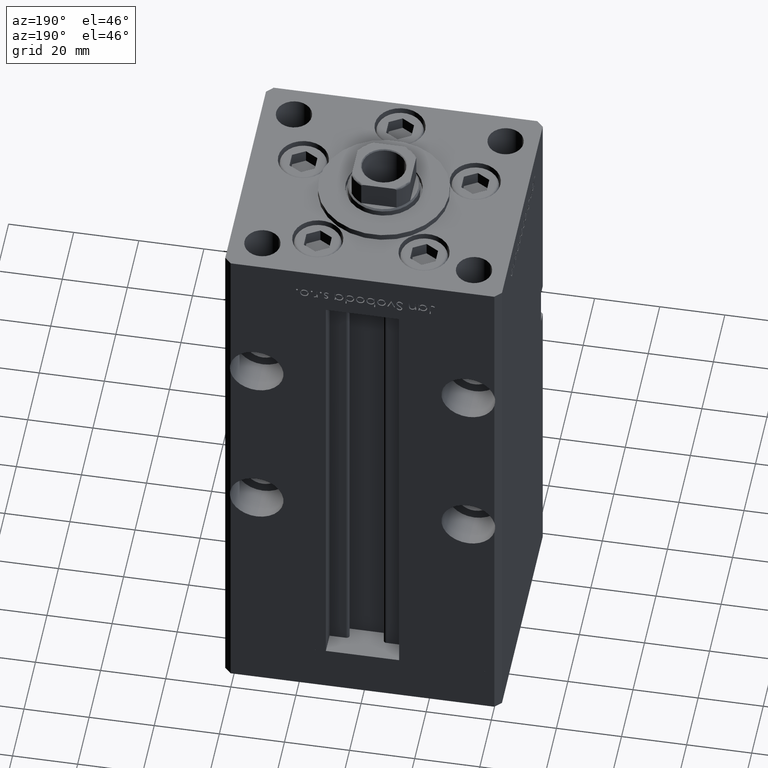
[diagram: clean part render]
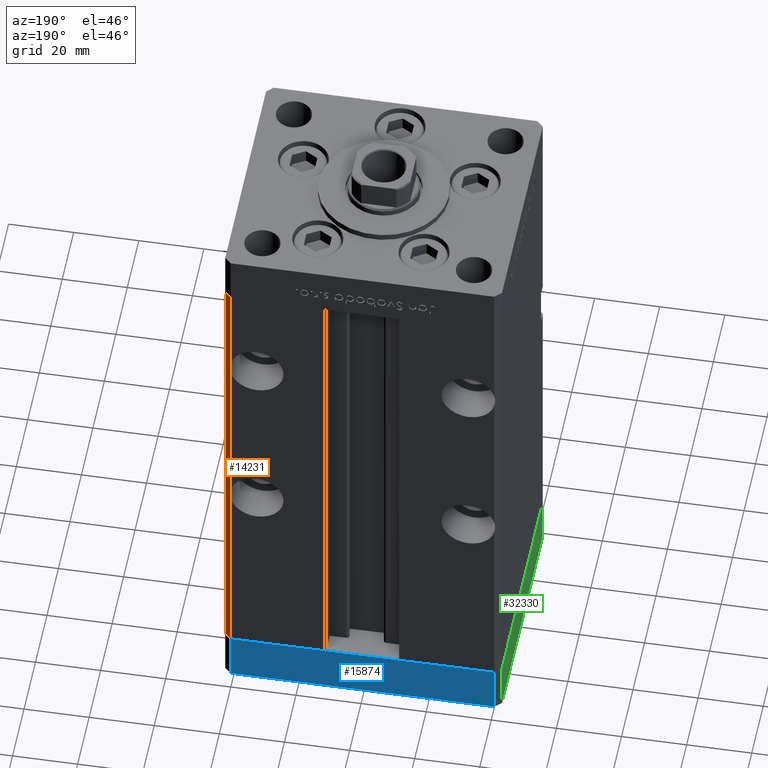
[diagram: same view with three faces highlighted in distinct colors, each labeled with its STEP entity id]
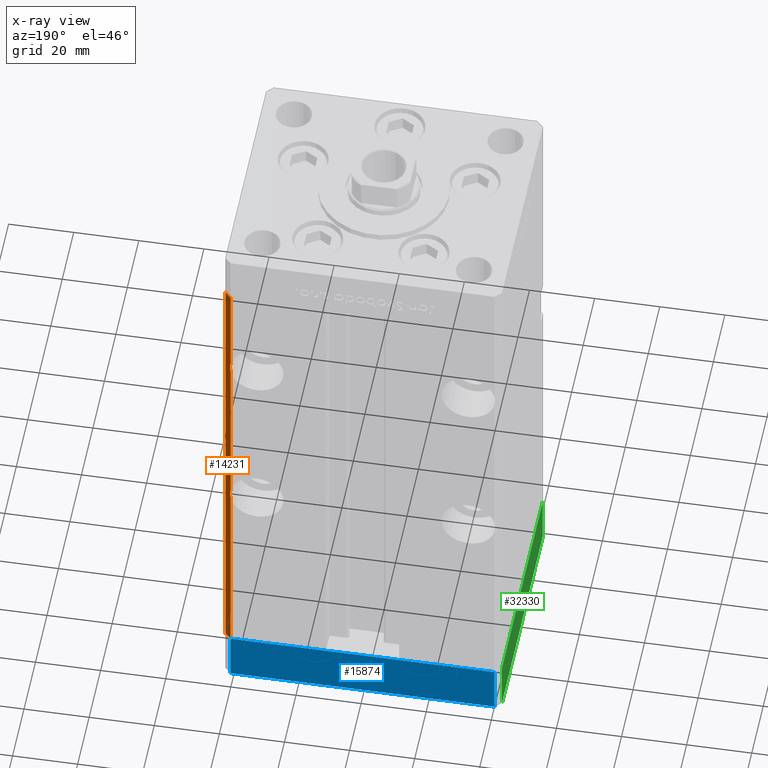
[diagram: x-ray of the same camera — body ghosted, the three highlighted faces saturated]
A machine part, auxiliary view with three faces highlighted in distinct colors.
The next image is the same camera in x-ray (body ghosted, the three faces saturated) — at least one of them is partly hidden behind the body in this view.
Their STEP definitions:

[orange] entity #14231 — the highlighted planar face has unit normal (0.7071, 0.7071, 0).
#256 = EDGE_CURVE ( 'NONE', #6663, #2018, #42035, .T. ) ;
#643 = ORIENTED_EDGE ( 'NONE', *, *, #37658, .F. ) ;
#1051 = EDGE_CURVE ( 'NONE', #2018, #48564, #11385, .T. ) ;
#1235 = ORIENTED_EDGE ( 'NONE', *, *, #25604, .T. ) ;
#2018 = VERTEX_POINT ( 'NONE', #45298 ) ;
#2128 = ORIENTED_EDGE ( 'NONE', *, *, #256, .F. ) ;
#2135 = CARTESIAN_POINT ( 'NONE',  ( 40.50000000000000711, 37.50000000000000000, 60.98443556292540535 ) ) ;
#2619 = LINE ( 'NONE', #18510, #19942 ) ;
#3597 = CARTESIAN_POINT ( 'NONE',  ( 40.50000000000000711, 37.50000000000000000, 0.000000000000000000 ) ) ;
#5402 = EDGE_CURVE ( 'NONE', #35009, #44326, #12497, .T. ) ;
#5543 = LINE ( 'NONE', #35129, #17250 ) ;
#6375 = LINE ( 'NONE', #14187, #12860 ) ;
#6413 = CARTESIAN_POINT ( 'NONE',  ( 40.50000000000000711, 37.50000000000000000, 120.0155644370746586 ) ) ;
#6663 = VERTEX_POINT ( 'NONE', #38478 ) ;
#7000 = LINE ( 'NONE', #49167, #32285 ) ;
#7986 = VECTOR ( 'NONE', #52550, 1000.000000000000000 ) ;
#10210 = CARTESIAN_POINT ( 'NONE',  ( 40.50000000000000711, 37.50000000000000000, 65.01556443707460176 ) ) ;
#11385 = LINE ( 'NONE', #27805, #7986 ) ;
#12497 =( BOUNDED_CURVE ( )  B_SPLINE_CURVE ( 3, ( #17370, #21922, #14379, #30015 ),
 .UNSPECIFIED., .F., .F. ) 
 B_SPLINE_CURVE_WITH_KNOTS ( ( 4, 4 ),
 ( 2.894783720120217119, 3.388401587059369113 ),
 .UNSPECIFIED. ) 
 CURVE ( )  GEOMETRIC_REPRESENTATION_ITEM ( )  RATIONAL_B_SPLINE_CURVE ( ( 1.000000000000000000, 0.9797979797979792238, 0.9797979797979792238, 1.000000000000000000 ) ) 
 REPRESENTATION_ITEM ( '' )  );
#12860 = VECTOR ( 'NONE', #19543, 1000.000000000000114 ) ;
#14187 = CARTESIAN_POINT ( 'NONE',  ( 40.50000000000000711, 37.50000000000000000, 148.5000000000000000 ) ) ;
#14231 = ADVANCED_FACE ( 'NONE', ( #49140 ), #16608, .T. ) ;
#14379 = CARTESIAN_POINT ( 'NONE',  ( 40.83505154639176737, 37.16494845360823973, 117.3142925110983015 ) ) ;
#14503 = ORIENTED_EDGE ( 'NONE', *, *, #32746, .F. ) ;
#14675 = DIRECTION ( 'NONE',  ( -0.000000000000000000, -0.000000000000000000, -1.000000000000000000 ) ) ;
#14899 = CARTESIAN_POINT ( 'NONE',  ( 40.50000000000000711, 37.50000000000000000, 0.000000000000000000 ) ) ;
#16608 = PLANE ( 'NONE',  #51229 ) ;
#17250 = VECTOR ( 'NONE', #14675, 1000.000000000000000 ) ;
#17370 = CARTESIAN_POINT ( 'NONE',  ( 40.50000000000000711, 37.50000000000000000, 120.0155644370746586 ) ) ;
#18510 = CARTESIAN_POINT ( 'NONE',  ( 40.50000000000000711, 37.50000000000000000, 148.5000000000000000 ) ) ;
#19543 = DIRECTION ( 'NONE',  ( 0.7071067811865500152, -0.7071067811865451302, 0.000000000000000000 ) ) ;
#19942 = VECTOR ( 'NONE', #27902, 1000.000000000000000 ) ;
#20396 = DIRECTION ( 'NONE',  ( -0.000000000000000000, -0.000000000000000000, -1.000000000000000000 ) ) ;
#21922 = CARTESIAN_POINT ( 'NONE',  ( 40.83505154639176737, 37.16494845360823973, 118.6857074889016843 ) ) ;
#23624 = CARTESIAN_POINT ( 'NONE',  ( 40.50000000000000711, 37.50000000000000000, 115.9844355629253272 ) ) ;
#25604 = EDGE_CURVE ( 'NONE', #39463, #35318, #6375, .T. ) ;
#26619 = CARTESIAN_POINT ( 'NONE',  ( 40.83505154639174606, 37.16494845360826105, 63.68570748890166300 ) ) ;
#26777 = ORIENTED_EDGE ( 'NONE', *, *, #51770, .T. ) ;
#27805 = CARTESIAN_POINT ( 'NONE',  ( 40.50000000000000711, 37.50000000000000000, 148.5000000000000000 ) ) ;
#27902 = DIRECTION ( 'NONE',  ( -0.000000000000000000, -0.000000000000000000, -1.000000000000000000 ) ) ;
#28671 = VECTOR ( 'NONE', #44235, 1000.000000000000114 ) ;
#28825 = VERTEX_POINT ( 'NONE', #51706 ) ;
#30015 = CARTESIAN_POINT ( 'NONE',  ( 40.50000000000000711, 37.50000000000000000, 115.9844355629253272 ) ) ;
#32285 = VECTOR ( 'NONE', #20396, 1000.000000000000000 ) ;
#32746 = EDGE_CURVE ( 'NONE', #44326, #6663, #5543, .T. ) ;
#35009 = VERTEX_POINT ( 'NONE', #6413 ) ;
#35113 = ORIENTED_EDGE ( 'NONE', *, *, #45203, .F. ) ;
#35129 = CARTESIAN_POINT ( 'NONE',  ( 40.50000000000000711, 37.50000000000000000, 148.5000000000000000 ) ) ;
#35318 = VERTEX_POINT ( 'NONE', #40407 ) ;
#36223 = DIRECTION ( 'NONE',  ( -0.7071067811865500152, 0.7071067811865451302, 0.000000000000000000 ) ) ;
#37658 = EDGE_CURVE ( 'NONE', #39463, #35009, #2619, .T. ) ;
#38092 = EDGE_LOOP ( 'NONE', ( #2128, #14503, #51098, #643, #1235, #26777, #35113, #50991 ) ) ;
#38478 = CARTESIAN_POINT ( 'NONE',  ( 40.50000000000000711, 37.50000000000000000, 65.01556443707460176 ) ) ;
#39463 = VERTEX_POINT ( 'NONE', #42478 ) ;
#40407 = CARTESIAN_POINT ( 'NONE',  ( 42.50000000000001421, 35.50000000000000711, 148.5000000000000000 ) ) ;
#40448 = LINE ( 'NONE', #3597, #28671 ) ;
#42035 =( BOUNDED_CURVE ( )  B_SPLINE_CURVE ( 3, ( #10210, #26619, #51361, #2135 ),
 .UNSPECIFIED., .F., .F. ) 
 B_SPLINE_CURVE_WITH_KNOTS ( ( 4, 4 ),
 ( 2.894783720120225556, 3.388401587059360676 ),
 .UNSPECIFIED. ) 
 CURVE ( )  GEOMETRIC_REPRESENTATION_ITEM ( )  RATIONAL_B_SPLINE_CURVE ( ( 1.000000000000000000, 0.9797979797979806671, 0.9797979797979806671, 1.000000000000000000 ) ) 
 REPRESENTATION_ITEM ( '' )  );
#42478 = CARTESIAN_POINT ( 'NONE',  ( 40.50000000000000711, 37.50000000000000000, 148.5000000000000000 ) ) ;
#44235 = DIRECTION ( 'NONE',  ( 0.7071067811865500152, -0.7071067811865451302, 0.000000000000000000 ) ) ;
#44326 = VERTEX_POINT ( 'NONE', #23624 ) ;
#44837 = DIRECTION ( 'NONE',  ( 0.7071067811865451302, 0.7071067811865500152, -0.000000000000000000 ) ) ;
#45203 = EDGE_CURVE ( 'NONE', #48564, #28825, #40448, .T. ) ;
#45298 = CARTESIAN_POINT ( 'NONE',  ( 40.50000000000000711, 37.50000000000000000, 60.98443556292540535 ) ) ;
#48564 = VERTEX_POINT ( 'NONE', #14899 ) ;
#49140 = FACE_OUTER_BOUND ( 'NONE', #38092, .T. ) ;
#49167 = CARTESIAN_POINT ( 'NONE',  ( 42.50000000000001421, 35.50000000000000711, 148.5000000000000000 ) ) ;
#50991 = ORIENTED_EDGE ( 'NONE', *, *, #1051, .F. ) ;
#51098 = ORIENTED_EDGE ( 'NONE', *, *, #5402, .F. ) ;
#51229 = AXIS2_PLACEMENT_3D ( 'NONE', #52917, #44837, #36223 ) ;
#51361 = CARTESIAN_POINT ( 'NONE',  ( 40.83505154639174606, 37.16494845360825394, 62.31429251109832990 ) ) ;
#51706 = CARTESIAN_POINT ( 'NONE',  ( 42.50000000000001421, 35.50000000000000711, 0.000000000000000000 ) ) ;
#51770 = EDGE_CURVE ( 'NONE', #35318, #28825, #7000, .T. ) ;
#52550 = DIRECTION ( 'NONE',  ( -0.000000000000000000, -0.000000000000000000, -1.000000000000000000 ) ) ;
#52917 = CARTESIAN_POINT ( 'NONE',  ( 40.50000000000000711, 37.50000000000000000, 148.5000000000000000 ) ) ;

[blue] entity #15874 — the highlighted planar face has unit normal (-0, 1, 0).
#1082 = ORIENTED_EDGE ( 'NONE', *, *, #24813, .F. ) ;
#2952 = CARTESIAN_POINT ( 'NONE',  ( 40.49999999999991473, 37.50000000000000711, 0.000000000000000000 ) ) ;
#3988 = CARTESIAN_POINT ( 'NONE',  ( -40.50000000000000711, 37.49999999999997868, 0.000000000000000000 ) ) ;
#8631 = CARTESIAN_POINT ( 'NONE',  ( 40.49999999999991473, 37.50000000000000711, -15.00000000000000000 ) ) ;
#11211 = DIRECTION ( 'NONE',  ( -1.000000000000000000, -3.426614273534436165E-16, 0.000000000000000000 ) ) ;
#12395 = DIRECTION ( 'NONE',  ( -1.000000000000000000, -3.426614273534436165E-16, 0.000000000000000000 ) ) ;
#14962 = LINE ( 'NONE', #48035, #19399 ) ;
#15874 = ADVANCED_FACE ( 'NONE', ( #52112 ), #31681, .T. ) ;
#16170 = LINE ( 'NONE', #8631, #24450 ) ;
#16924 = CARTESIAN_POINT ( 'NONE',  ( 40.49999999999991473, 37.50000000000000711, -15.00000000000000000 ) ) ;
#19265 = DIRECTION ( 'NONE',  ( 0.000000000000000000, 0.000000000000000000, 1.000000000000000000 ) ) ;
#19399 = VECTOR ( 'NONE', #19265, 1000.000000000000000 ) ;
#21723 = VERTEX_POINT ( 'NONE', #2952 ) ;
#22319 = EDGE_CURVE ( 'NONE', #21723, #35979, #23810, .T. ) ;
#23810 = LINE ( 'NONE', #40203, #26510 ) ;
#24450 = VECTOR ( 'NONE', #12395, 1000.000000000000000 ) ;
#24813 = EDGE_CURVE ( 'NONE', #40406, #21723, #26497, .T. ) ;
#26497 = LINE ( 'NONE', #16924, #28292 ) ;
#26510 = VECTOR ( 'NONE', #50082, 1000.000000000000000 ) ;
#27117 = VERTEX_POINT ( 'NONE', #34627 ) ;
#28292 = VECTOR ( 'NONE', #42900, 1000.000000000000000 ) ;
#31681 = PLANE ( 'NONE',  #43546 ) ;
#33375 = ORIENTED_EDGE ( 'NONE', *, *, #22319, .F. ) ;
#34304 = ORIENTED_EDGE ( 'NONE', *, *, #51948, .T. ) ;
#34627 = CARTESIAN_POINT ( 'NONE',  ( -40.50000000000000711, 37.49999999999997868, -15.00000000000000000 ) ) ;
#35959 = CARTESIAN_POINT ( 'NONE',  ( 40.49999999999991473, 37.50000000000000711, -15.00000000000000000 ) ) ;
#35979 = VERTEX_POINT ( 'NONE', #3988 ) ;
#40203 = CARTESIAN_POINT ( 'NONE',  ( 40.49999999999991473, 37.50000000000000711, 0.000000000000000000 ) ) ;
#40406 = VERTEX_POINT ( 'NONE', #46960 ) ;
#42669 = ORIENTED_EDGE ( 'NONE', *, *, #48040, .T. ) ;
#42900 = DIRECTION ( 'NONE',  ( 0.000000000000000000, 0.000000000000000000, 1.000000000000000000 ) ) ;
#43546 = AXIS2_PLACEMENT_3D ( 'NONE', #35959, #48068, #11211 ) ;
#45860 = EDGE_LOOP ( 'NONE', ( #33375, #1082, #42669, #34304 ) ) ;
#46960 = CARTESIAN_POINT ( 'NONE',  ( 40.49999999999991473, 37.50000000000000711, -15.00000000000000000 ) ) ;
#48035 = CARTESIAN_POINT ( 'NONE',  ( -40.50000000000000711, 37.49999999999997868, -15.00000000000000000 ) ) ;
#48040 = EDGE_CURVE ( 'NONE', #40406, #27117, #16170, .T. ) ;
#48068 = DIRECTION ( 'NONE',  ( -3.426614273534436165E-16, 1.000000000000000000, 0.000000000000000000 ) ) ;
#50082 = DIRECTION ( 'NONE',  ( -1.000000000000000000, -3.426614273534436165E-16, 0.000000000000000000 ) ) ;
#51948 = EDGE_CURVE ( 'NONE', #27117, #35979, #14962, .T. ) ;
#52112 = FACE_OUTER_BOUND ( 'NONE', #45860, .T. ) ;

[green] entity #32330 — the highlighted planar face has unit normal (-1, -0, 0).
#1930 = LINE ( 'NONE', #18354, #28910 ) ;
#3183 = VERTEX_POINT ( 'NONE', #27336 ) ;
#7179 = VECTOR ( 'NONE', #27503, 1000.000000000000000 ) ;
#8608 = VECTOR ( 'NONE', #19081, 1000.000000000000000 ) ;
#11087 = CARTESIAN_POINT ( 'NONE',  ( 42.49999999999992895, 35.50000000000000000, -15.00000000000000000 ) ) ;
#13460 = CARTESIAN_POINT ( 'NONE',  ( 42.50000000000000711, -35.50000000000000000, 0.000000000000000000 ) ) ;
#15440 = VERTEX_POINT ( 'NONE', #27434 ) ;
#17122 = VERTEX_POINT ( 'NONE', #20842 ) ;
#17236 = VERTEX_POINT ( 'NONE', #26462 ) ;
#18354 = CARTESIAN_POINT ( 'NONE',  ( 42.50000000000000711, -35.50000000000000000, -15.00000000000000000 ) ) ;
#19081 = DIRECTION ( 'NONE',  ( 0.000000000000000000, 0.000000000000000000, 1.000000000000000000 ) ) ;
#20842 = CARTESIAN_POINT ( 'NONE',  ( 42.50000000000000711, -35.50000000000000000, -15.00000000000000000 ) ) ;
#22158 = DIRECTION ( 'NONE',  ( -1.172770800660376741E-15, 1.000000000000000000, 0.000000000000000000 ) ) ;
#22683 = CARTESIAN_POINT ( 'NONE',  ( 42.50000000000000711, -35.50000000000000000, -15.00000000000000000 ) ) ;
#23468 = LINE ( 'NONE', #11087, #7179 ) ;
#25253 = ORIENTED_EDGE ( 'NONE', *, *, #52470, .T. ) ;
#25796 = AXIS2_PLACEMENT_3D ( 'NONE', #22683, #42069, #22158 ) ;
#25837 = DIRECTION ( 'NONE',  ( -1.172770800660376741E-15, 1.000000000000000000, 0.000000000000000000 ) ) ;
#26462 = CARTESIAN_POINT ( 'NONE',  ( 42.49999999999992895, 35.50000000000000000, 0.000000000000000000 ) ) ;
#27160 = CARTESIAN_POINT ( 'NONE',  ( 42.50000000000000711, -35.50000000000000000, -15.00000000000000000 ) ) ;
#27336 = CARTESIAN_POINT ( 'NONE',  ( 42.49999999999992895, 35.50000000000000000, -15.00000000000000000 ) ) ;
#27434 = CARTESIAN_POINT ( 'NONE',  ( 42.50000000000000711, -35.50000000000000000, 0.000000000000000000 ) ) ;
#27503 = DIRECTION ( 'NONE',  ( 0.000000000000000000, 0.000000000000000000, 1.000000000000000000 ) ) ;
#27686 = EDGE_CURVE ( 'NONE', #17122, #15440, #39516, .T. ) ;
#28910 = VECTOR ( 'NONE', #51424, 1000.000000000000000 ) ;
#32330 = ADVANCED_FACE ( 'NONE', ( #50673 ), #50410, .T. ) ;
#39516 = LINE ( 'NONE', #27160, #8608 ) ;
#41980 = LINE ( 'NONE', #13460, #47659 ) ;
#42069 = DIRECTION ( 'NONE',  ( 1.000000000000000000, 1.172770800660376741E-15, -0.000000000000000000 ) ) ;
#42117 = ORIENTED_EDGE ( 'NONE', *, *, #46356, .T. ) ;
#46356 = EDGE_CURVE ( 'NONE', #3183, #17236, #23468, .T. ) ;
#46926 = ORIENTED_EDGE ( 'NONE', *, *, #49094, .F. ) ;
#47659 = VECTOR ( 'NONE', #25837, 1000.000000000000000 ) ;
#49094 = EDGE_CURVE ( 'NONE', #15440, #17236, #41980, .T. ) ;
#50410 = PLANE ( 'NONE',  #25796 ) ;
#50673 = FACE_OUTER_BOUND ( 'NONE', #52024, .T. ) ;
#51424 = DIRECTION ( 'NONE',  ( -1.172770800660376741E-15, 1.000000000000000000, 0.000000000000000000 ) ) ;
#52024 = EDGE_LOOP ( 'NONE', ( #46926, #52379, #25253, #42117 ) ) ;
#52379 = ORIENTED_EDGE ( 'NONE', *, *, #27686, .F. ) ;
#52470 = EDGE_CURVE ( 'NONE', #17122, #3183, #1930, .T. ) ;